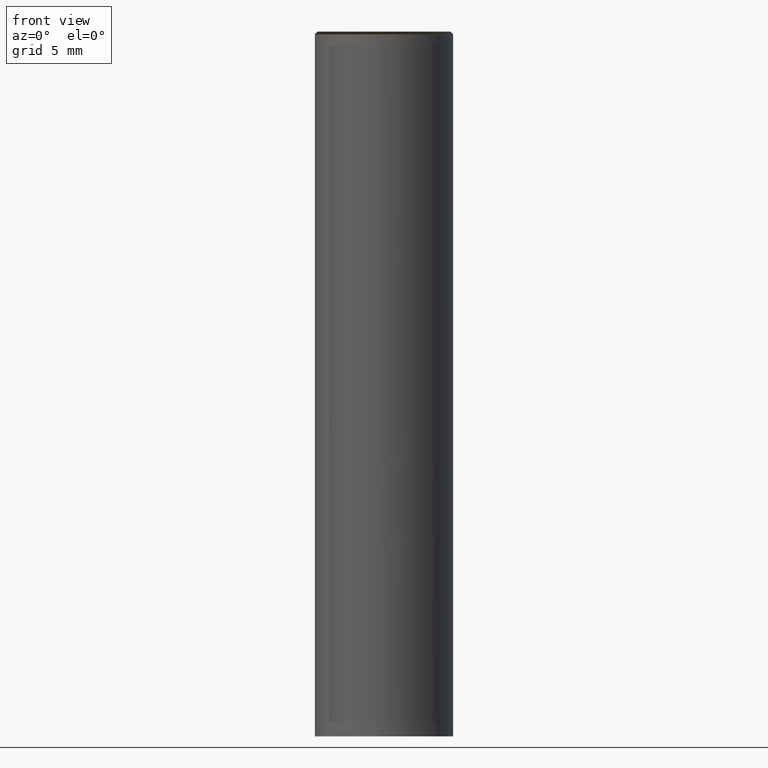
[diagram: clean part render]
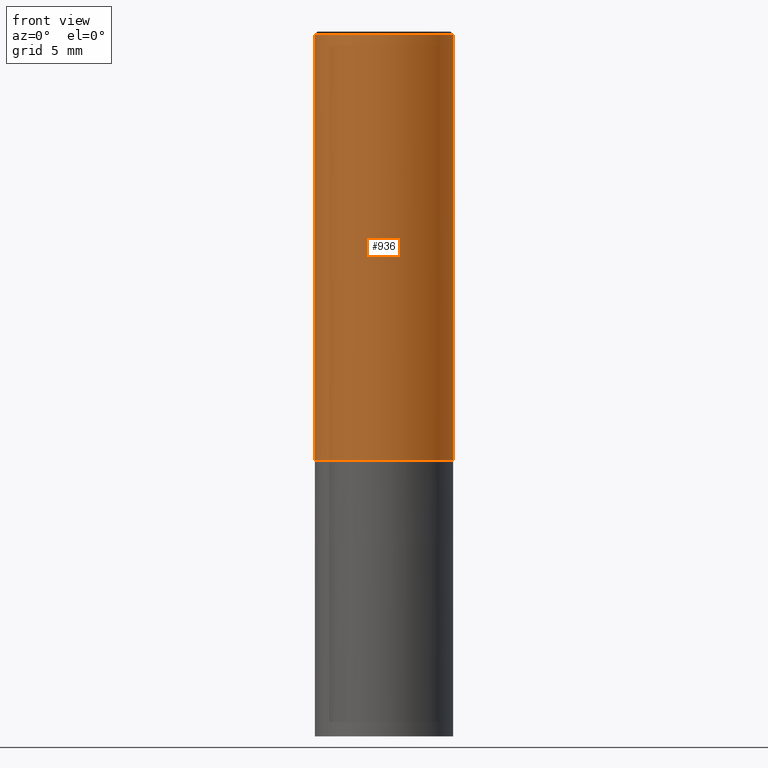
[diagram: same view with one face highlighted and labeled with its STEP entity id]
A machine part, front view. The second image highlights one B-rep face of the part: STEP entity #936.
In plain terms, the highlighted face is a freeform B-spline surface patch.
Its self-contained STEP definition (entity closure, byte-faithful):
#650=CARTESIAN_POINT('',(5.0,0.0,0.0));
#654=CARTESIAN_POINT('',(-5.0,0.0,0.0));
#655=CARTESIAN_POINT('',(5.0,0.0,30.8));
#659=CARTESIAN_POINT('',(-5.0,0.0,30.8));
#666=CARTESIAN_POINT('',(-5.0,-5.0,0.0));
#667=CARTESIAN_POINT('',(0.0,-5.0,0.0));
#668=CARTESIAN_POINT('',(5.0,-5.0,0.0));
#669=CARTESIAN_POINT('',(-5.0,-5.0,30.8));
#670=CARTESIAN_POINT('',(0.0,-5.0,30.8));
#671=CARTESIAN_POINT('',(5.0,-5.0,30.8));
#917=(
BOUNDED_SURFACE()
B_SPLINE_SURFACE(1,2,(
(#654,#666,#667,#668,#650),
(#659,#669,#670,#671,#655)
), .UNSPECIFIED.,.F.,.F.,.F.)
B_SPLINE_SURFACE_WITH_KNOTS((2,2),(3,2,3),(
0.0,1.0),(
0.0,0.5,1.0), .UNSPECIFIED.)
GEOMETRIC_REPRESENTATION_ITEM()
RATIONAL_B_SPLINE_SURFACE(((1.0,0.707106781187,1.0,0.707106781187,1.0),
(1.0,0.707106781187,1.0,0.707106781187,1.0)
))
REPRESENTATION_ITEM('')
SURFACE()
);
#918=(
BOUNDED_CURVE()
B_SPLINE_CURVE(2,(#650,#668,#667,#666,#654),.UNSPECIFIED.,.F.,.F.)
B_SPLINE_CURVE_WITH_KNOTS((3,2,3),
(0.0,0.5,1.0),.UNSPECIFIED.)
CURVE()
GEOMETRIC_REPRESENTATION_ITEM()
RATIONAL_B_SPLINE_CURVE((1.0,0.707106781187,1.0,0.707106781187,1.0))
REPRESENTATION_ITEM('')
);
#919=(
BOUNDED_CURVE()
B_SPLINE_CURVE(1,(#654,#659),.UNSPECIFIED.,.F.,.F.)
B_SPLINE_CURVE_WITH_KNOTS((2,2),
(0.0,1.0),.UNSPECIFIED.)
CURVE()
GEOMETRIC_REPRESENTATION_ITEM()
RATIONAL_B_SPLINE_CURVE((1.0,1.0))
REPRESENTATION_ITEM('')
);
#920=(
BOUNDED_CURVE()
B_SPLINE_CURVE(2,(#659,#669,#670,#671,#655),.UNSPECIFIED.,.F.,.F.)
B_SPLINE_CURVE_WITH_KNOTS((3,2,3),
(0.0,0.5,1.0),.UNSPECIFIED.)
CURVE()
GEOMETRIC_REPRESENTATION_ITEM()
RATIONAL_B_SPLINE_CURVE((1.0,0.707106781187,1.0,0.707106781187,1.0))
REPRESENTATION_ITEM('')
);
#921=(
BOUNDED_CURVE()
B_SPLINE_CURVE(1,(#655,#650),.UNSPECIFIED.,.F.,.F.)
B_SPLINE_CURVE_WITH_KNOTS((2,2),
(0.0,1.0),.UNSPECIFIED.)
CURVE()
GEOMETRIC_REPRESENTATION_ITEM()
RATIONAL_B_SPLINE_CURVE((1.0,1.0))
REPRESENTATION_ITEM('')
);
#922=VERTEX_POINT('',#650);
#923=VERTEX_POINT('',#654);
#924=VERTEX_POINT('',#655);
#925=VERTEX_POINT('',#659);
#926=EDGE_CURVE('',#922,#923,#918,.T.);
#927=EDGE_CURVE('',#923,#925,#919,.T.);
#928=EDGE_CURVE('',#925,#924,#920,.T.);
#929=EDGE_CURVE('',#924,#922,#921,.T.);
#930=ORIENTED_EDGE('',*,*,#926,.T.);
#931=ORIENTED_EDGE('',*,*,#927,.T.);
#932=ORIENTED_EDGE('',*,*,#928,.T.);
#933=ORIENTED_EDGE('',*,*,#929,.T.);
#934=EDGE_LOOP('',(#930,#931,#932,#933));
#935=FACE_OUTER_BOUND('',#934,.T.);
#936=ADVANCED_FACE('',(#935),#917,.T.);